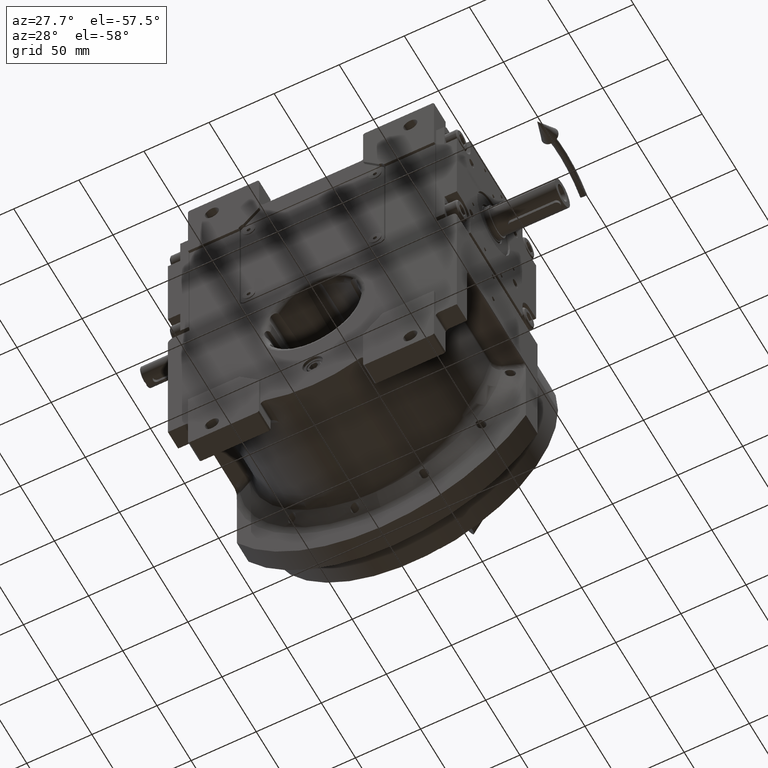
[diagram: clean part render]
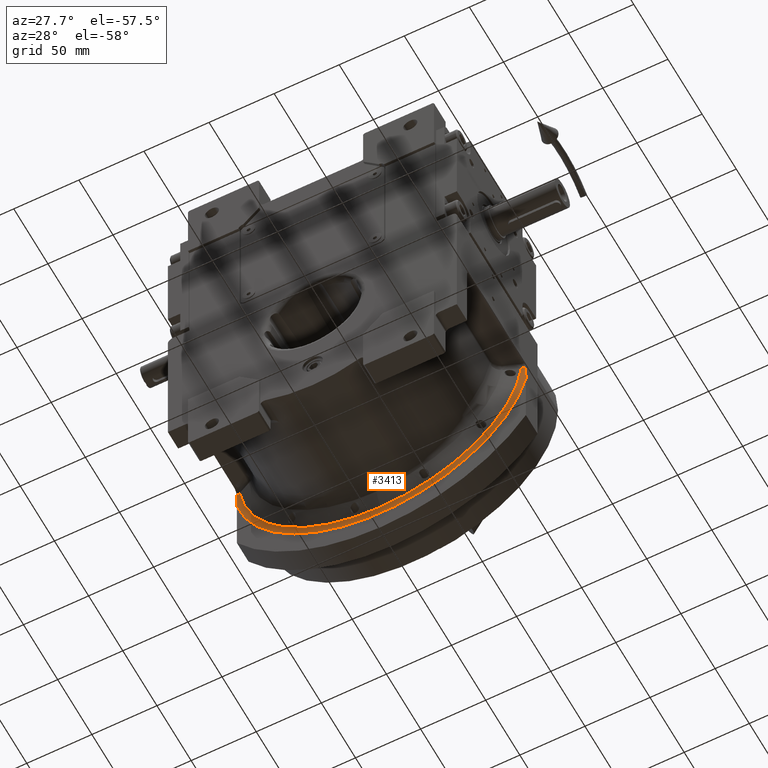
[diagram: same view with one face highlighted and labeled with its STEP entity id]
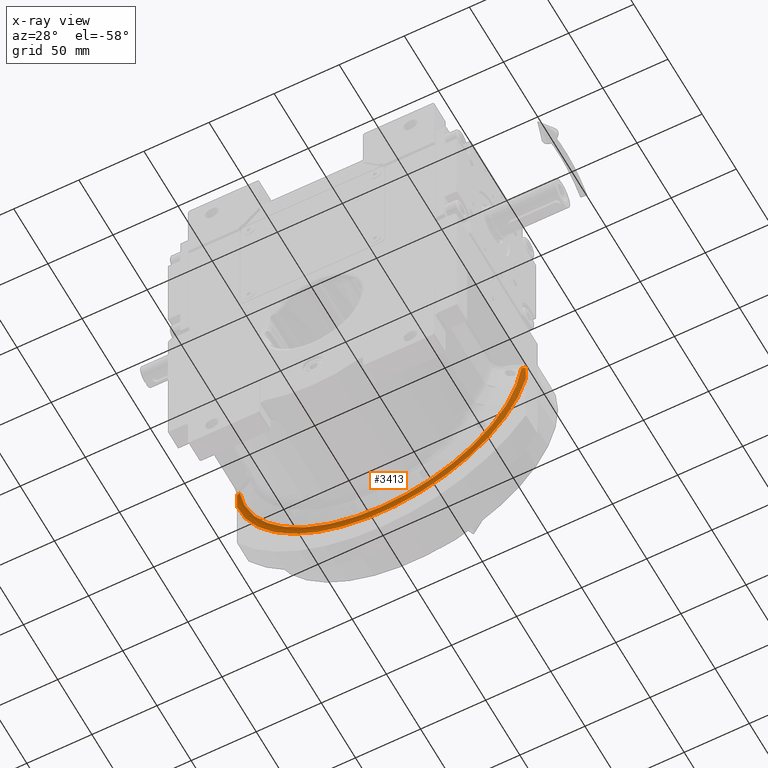
[diagram: x-ray of the same camera — body ghosted, the highlighted face saturated]
A machine part, auxiliary view. The second image highlights one B-rep face of the part: STEP entity #3413.
The next image is the same camera in x-ray: the body ghosted, the highlighted face saturated — about 0% of this face is hidden behind the body in this view.
In plain terms, the highlighted toroidal blend (fillet) surface has major radius 113.879 mm and minor (blend) radius 10 mm.
Its self-contained STEP definition (entity closure, byte-faithful):
#2271 = CARTESIAN_POINT ( 'NONE',  ( 110.9999999999999858, 47.35262548411426309, -16.14045418600772308 ) ) ;
#2399 = CARTESIAN_POINT ( 'NONE',  ( -109.9037689433001930, 46.93895356715016476, -11.84632748395139146 ) ) ;
#3413 = ADVANCED_FACE ( 'NONE', ( #51587 ), #38205, .F. ) ;
#3586 = CARTESIAN_POINT ( 'NONE',  ( 108.2182055107325880, 46.16026080517839603, -11.98086067912928065 ) ) ;
#7756 = CARTESIAN_POINT ( 'NONE',  ( 110.9999998869266022, 47.24161831933449918, -11.75654022255562126 ) ) ;
#7889 = ORIENTED_EDGE ( 'NONE', *, *, #29424, .T. ) ;
#7964 = EDGE_CURVE ( 'NONE', #12596, #47589, #19953, .T. ) ;
#7986 = CARTESIAN_POINT ( 'NONE',  ( 108.9783490142804538, 46.56487083118202719, -11.92075401756932429 ) ) ;
#9443 = EDGE_CURVE ( 'NONE', #45507, #20563, #11861, .T. ) ;
#9647 = CARTESIAN_POINT ( 'NONE',  ( -6.107335892911600708E-14, 46.16024936020976099, -108.8793717567185979 ) ) ;
#9955 = CARTESIAN_POINT ( 'NONE',  ( -111.0000000000000142, 47.38697793714037942, -17.55712914402924696 ) ) ;
#11861 =( BOUNDED_CURVE ( )  B_SPLINE_CURVE ( 3, ( #51215, #67062, #24739, #36052 ),
 .UNSPECIFIED., .F., .F. ) 
 B_SPLINE_CURVE_WITH_KNOTS ( ( 4, 4 ),
 ( 0.07171175334500150267, 1.532246419677093741 ),
 .UNSPECIFIED. ) 
 CURVE ( )  GEOMETRIC_REPRESENTATION_ITEM ( )  RATIONAL_B_SPLINE_CURVE ( ( 1.000000000000000000, 0.8299973995656204639, 0.8299973995656204639, 1.000000000000000000 ) ) 
 REPRESENTATION_ITEM ( '' )  );
#12596 = VERTEX_POINT ( 'NONE', #59204 ) ;
#12605 = CARTESIAN_POINT ( 'NONE',  ( 110.9999999999999574, 47.38500262563848509, -17.48094355212767326 ) ) ;
#13263 = VERTEX_POINT ( 'NONE', #61753 ) ;
#13751 = CARTESIAN_POINT ( 'NONE',  ( -108.5720257659131534, 46.36153724422366906, -11.95314572303506395 ) ) ;
#14110 = CIRCLE ( 'NONE', #15174, 113.8793756871230158 ) ;
#14183 = CARTESIAN_POINT ( 'NONE',  ( 110.4235987460407671, 47.10989188117843440, -11.80426955000224964 ) ) ;
#15174 = AXIS2_PLACEMENT_3D ( 'NONE', #49527, #53997, #27876 ) ;
#15194 = CARTESIAN_POINT ( 'NONE',  ( 108.2182055107325880, 46.16026080517839603, -11.98086067912928065 ) ) ;
#17212 = EDGE_CURVE ( 'NONE', #61871, #45507, #23720, .T. ) ;
#17746 = CARTESIAN_POINT ( 'NONE',  ( 110.9999999999999432, 47.30109702303251140, -14.03657177442504000 ) ) ;
#18095 = CARTESIAN_POINT ( 'NONE',  ( 111.0000000000000000, 47.50000000000000000, -25.44626115736659955 ) ) ;
#18879 = CARTESIAN_POINT ( 'NONE',  ( -108.2181486248951927, 46.16020982646139714, -11.98056577044130044 ) ) ;
#18929 = CARTESIAN_POINT ( 'NONE',  ( -111.0000000000000284, 47.26671036820440008, -12.69711666045169274 ) ) ;
#19248 = CARTESIAN_POINT ( 'NONE',  ( -110.4234585868003222, 47.10985980794839634, -11.80427979343789069 ) ) ;
#19285 = CARTESIAN_POINT ( 'NONE',  ( -111.0000000000000000, 47.50000000000000000, -25.44626115736729588 ) ) ;
#19953 = B_SPLINE_CURVE_WITH_KNOTS ( 'NONE', 3,
 ( #19285, #67453, #41277, #62296, #36118, #57118, #9955, #30952, #51936, #24121, #66102, #18929, #60946 ),
 .UNSPECIFIED., .F., .F.,
 ( 4, 1, 1, 2, 2, 1, 1, 1, 4 ),
 ( 0.000000000000000000, 0.4999999999999906741, 0.5624999999999891198, 0.5703124999999893419, 0.5781249999999896749, 0.5937499999999901190, 0.6249999999999905631, 0.7499999999999935607, 1.000000000000000000 ),
 .UNSPECIFIED. ) ;
#20563 = VERTEX_POINT ( 'NONE', #3586 ) ;
#21490 = CARTESIAN_POINT ( 'NONE',  ( -58.33770022237654018, 46.16024937670292871, -108.8793721944054340 ) ) ;
#22414 = EDGE_CURVE ( 'NONE', #58611, #20563, #62018, .T. ) ;
#22936 = CARTESIAN_POINT ( 'NONE',  ( 110.9999999999999716, 47.37947912676571605, -17.25058397870262894 ) ) ;
#23720 =( BOUNDED_CURVE ( )  B_SPLINE_CURVE ( 3, ( #67966, #63143, #21490, #41784 ),
 .UNSPECIFIED., .F., .F. ) 
 B_SPLINE_CURVE_WITH_KNOTS ( ( 4, 4 ),
 ( 4.894359738531879778, 6.354897060524587360 ),
 .UNSPECIFIED. ) 
 CURVE ( )  GEOMETRIC_REPRESENTATION_ITEM ( )  RATIONAL_B_SPLINE_CURVE ( ( 1.000000000000000000, 0.8299968090623841555, 0.8299968090623841555, 1.000000000000000000 ) ) 
 REPRESENTATION_ITEM ( '' )  );
#24121 = CARTESIAN_POINT ( 'NONE',  ( -110.9999999999999716, 47.35640947859300098, -16.28572579493090444 ) ) ;
#24381 = EDGE_CURVE ( 'NONE', #58611, #13263, #55692, .T. ) ;
#24739 = CARTESIAN_POINT ( 'NONE',  ( 101.7988371762501458, 46.16025378558333614, -69.96418493751507128 ) ) ;
#24805 = CARTESIAN_POINT ( 'NONE',  ( -110.9999998426041969, 47.24161804384319652, -11.75654023702319861 ) ) ;
#25440 = ORIENTED_EDGE ( 'NONE', *, *, #24381, .F. ) ;
#27876 = DIRECTION ( 'NONE',  ( -0.9747155648707268583, 0.000000000000000000, -0.2234492506112734644 ) ) ;
#28992 = CARTESIAN_POINT ( 'NONE',  ( 108.5721546957471020, 46.36161021549431638, -11.95313475060374131 ) ) ;
#28998 = ORIENTED_EDGE ( 'NONE', *, *, #9443, .F. ) ;
#29239 = CARTESIAN_POINT ( 'NONE',  ( -108.2181486248951927, 46.16020982646139714, -11.98056577044130044 ) ) ;
#29424 = EDGE_CURVE ( 'NONE', #61871, #47589, #35403, .T. ) ;
#29657 = ORIENTED_EDGE ( 'NONE', *, *, #22414, .T. ) ;
#30952 = CARTESIAN_POINT ( 'NONE',  ( -111.0000000000000568, 47.38398366112607363, -17.43201616111707608 ) ) ;
#33593 = CARTESIAN_POINT ( 'NONE',  ( 111.0000000000000000, 47.38034144301978046, -17.28637658354777784 ) ) ;
#35176 = CARTESIAN_POINT ( 'NONE',  ( 109.9039732449431170, 46.93902478097685815, -11.84631214861205706 ) ) ;
#35403 = B_SPLINE_CURVE_WITH_KNOTS ( 'NONE', 3,
 ( #29239, #13751, #44373, #2399, #19248, #39545 ),
 .UNSPECIFIED., .F., .F.,
 ( 4, 2, 4 ),
 ( 0.000000000000000000, 0.5000000000000000000, 1.000000000000000000 ),
 .UNSPECIFIED. ) ;
#36052 = CARTESIAN_POINT ( 'NONE',  ( 108.2182055107325880, 46.16026080517839603, -11.98086067912928065 ) ) ;
#36118 = CARTESIAN_POINT ( 'NONE',  ( -111.0000000000000284, 47.38981798226070907, -17.67600262140464196 ) ) ;
#37790 = ORIENTED_EDGE ( 'NONE', *, *, #17212, .F. ) ;
#38205 = TOROIDAL_SURFACE ( 'NONE', #59091, 113.8793756871230016, 10.00000000000000000 ) ;
#38737 = CARTESIAN_POINT ( 'NONE',  ( 110.9999999999999574, 47.49300976463167956, -23.37757664004382363 ) ) ;
#39084 = CARTESIAN_POINT ( 'NONE',  ( 110.9999999999999574, 47.37721023959501565, -17.15660303781627150 ) ) ;
#39545 = CARTESIAN_POINT ( 'NONE',  ( -110.9999998426041969, 47.24161804384319652, -11.75654023702319861 ) ) ;
#41277 = CARTESIAN_POINT ( 'NONE',  ( -110.9999999999999858, 47.45869610671962846, -20.70783326501533494 ) ) ;
#41784 = CARTESIAN_POINT ( 'NONE',  ( -6.107335892911600708E-14, 46.16024936020976099, -108.8793717567185979 ) ) ;
#44243 = CARTESIAN_POINT ( 'NONE',  ( 110.9999999999999289, 47.46019542777067812, -20.85051949887152745 ) ) ;
#44373 = CARTESIAN_POINT ( 'NONE',  ( -108.9781506155099464, 46.56477920288156724, -11.92076974956339086 ) ) ;
#45507 = VERTEX_POINT ( 'NONE', #9647 ) ;
#46418 = CARTESIAN_POINT ( 'NONE',  ( -9.237055564881299892E-14, 37.50000000000000000, -8.171241461241149613E-14 ) ) ;
#47589 = VERTEX_POINT ( 'NONE', #24805 ) ;
#48061 = ORIENTED_EDGE ( 'NONE', *, *, #50617, .T. ) ;
#49527 = CARTESIAN_POINT ( 'NONE',  ( -9.947598300641398816E-14, 47.50000000000000000, -5.684341886080798963E-14 ) ) ;
#50108 = CARTESIAN_POINT ( 'NONE',  ( 110.9999999999999858, 47.37382107352491545, -17.01630155678829581 ) ) ;
#50617 = EDGE_CURVE ( 'NONE', #12596, #13263, #14110, .T. ) ;
#50909 = DIRECTION ( 'NONE',  ( -0.9987228073795436645, 0.000000000000000000, -0.05052478619373559215 ) ) ;
#51215 = CARTESIAN_POINT ( 'NONE',  ( -6.107335892911600708E-14, 46.16024936020976099, -108.8793717567185979 ) ) ;
#51587 = FACE_OUTER_BOUND ( 'NONE', #53813, .T. ) ;
#51936 = CARTESIAN_POINT ( 'NONE',  ( -111.0000000000000000, 47.37801887890174868, -17.18315811918595060 ) ) ;
#53813 = EDGE_LOOP ( 'NONE', ( #37790, #7889, #64141, #48061, #25440, #29657, #28998 ) ) ;
#53997 = DIRECTION ( 'NONE',  ( 0.000000000000000000, -1.000000000000000000, 0.000000000000000000 ) ) ;
#54909 = CARTESIAN_POINT ( 'NONE',  ( 110.9999999999999147, 47.39592956473512686, -17.94582316151957713 ) ) ;
#55131 = CARTESIAN_POINT ( 'NONE',  ( 110.9999998869266022, 47.24161831933449918, -11.75654022255562126 ) ) ;
#55692 = B_SPLINE_CURVE_WITH_KNOTS ( 'NONE', 3,
 ( #7756, #60092, #17746, #2271, #50108, #39084, #22936, #33593, #12605, #54909, #44243, #38737, #18095 ),
 .UNSPECIFIED., .F., .F.,
 ( 4, 1, 1, 1, 2, 2, 1, 1, 4 ),
 ( 0.000000000000000000, 0.2499999999999993339, 0.3749999999999991673, 0.3906249999999991673, 0.3984374999999988898, 0.4062499999999986122, 0.4374999999999987788, 0.4999999999999991118, 1.000000000000000000 ),
 .UNSPECIFIED. ) ;
#56413 = DIRECTION ( 'NONE',  ( 0.000000000000000000, 1.000000000000000000, 0.000000000000000000 ) ) ;
#57118 = CARTESIAN_POINT ( 'NONE',  ( -111.0000000000000142, 47.38804427955523835, -17.60168279826294579 ) ) ;
#57339 = CARTESIAN_POINT ( 'NONE',  ( 110.9999998869266022, 47.24161831933449918, -11.75654022255562126 ) ) ;
#58611 = VERTEX_POINT ( 'NONE', #57339 ) ;
#59091 = AXIS2_PLACEMENT_3D ( 'NONE', #46418, #56413, #50909 ) ;
#59204 = CARTESIAN_POINT ( 'NONE',  ( -111.0000000000000000, 47.50000000000000000, -25.44626115736729588 ) ) ;
#60092 = CARTESIAN_POINT ( 'NONE',  ( 110.9999999999999574, 47.26250817921272329, -12.53135113091263264 ) ) ;
#60946 = CARTESIAN_POINT ( 'NONE',  ( -110.9999998426041969, 47.24161804384319652, -11.75654023702319861 ) ) ;
#61753 = CARTESIAN_POINT ( 'NONE',  ( 111.0000000000000000, 47.50000000000000000, -25.44626115736659955 ) ) ;
#61871 = VERTEX_POINT ( 'NONE', #18879 ) ;
#62018 = B_SPLINE_CURVE_WITH_KNOTS ( 'NONE', 3,
 ( #55131, #14183, #35176, #7986, #28992, #15194 ),
 .UNSPECIFIED., .F., .F.,
 ( 4, 2, 4 ),
 ( 0.000000000000000000, 0.5000000000000000000, 1.000000000000000000 ),
 .UNSPECIFIED. ) ;
#62296 = CARTESIAN_POINT ( 'NONE',  ( -111.0000000000000142, 47.39775283363938030, -18.01025571059393826 ) ) ;
#63143 = CARTESIAN_POINT ( 'NONE',  ( -101.7990064294248214, 46.16025384316066038, -69.96404336023731219 ) ) ;
#64141 = ORIENTED_EDGE ( 'NONE', *, *, #7964, .F. ) ;
#66102 = CARTESIAN_POINT ( 'NONE',  ( -111.0000000000000284, 47.30739276393136095, -14.28307552350015541 ) ) ;
#67062 = CARTESIAN_POINT ( 'NONE',  ( 58.33757220637139795, 46.16024934371661459, -108.8793713190323729 ) ) ;
#67453 = CARTESIAN_POINT ( 'NONE',  ( -110.9999999999999858, 47.49184152199143227, -23.26125549203704068 ) ) ;
#67966 = CARTESIAN_POINT ( 'NONE',  ( -108.2181486248951927, 46.16020982646139714, -11.98056577044130044 ) ) ;